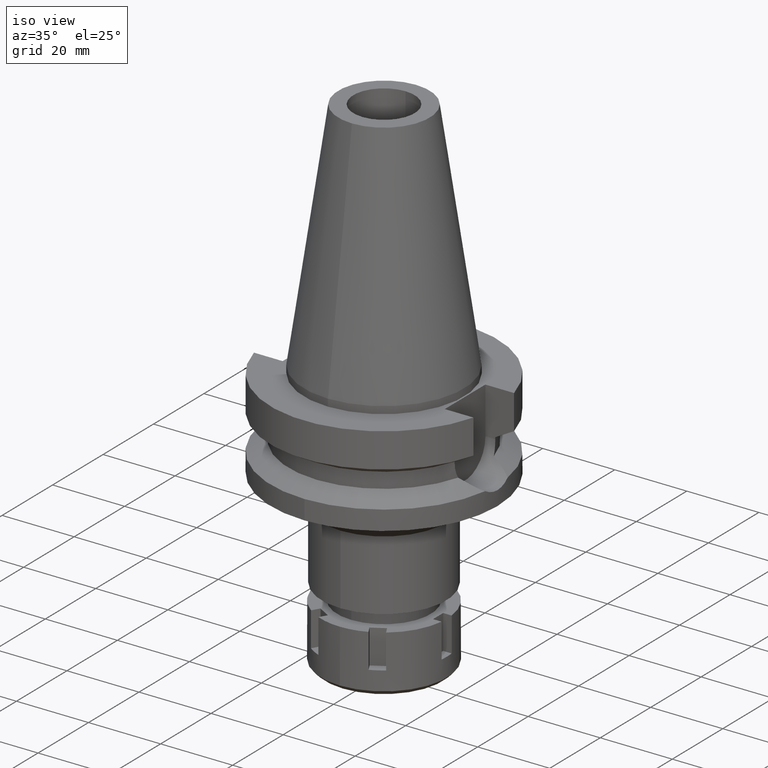
[diagram: clean part render]
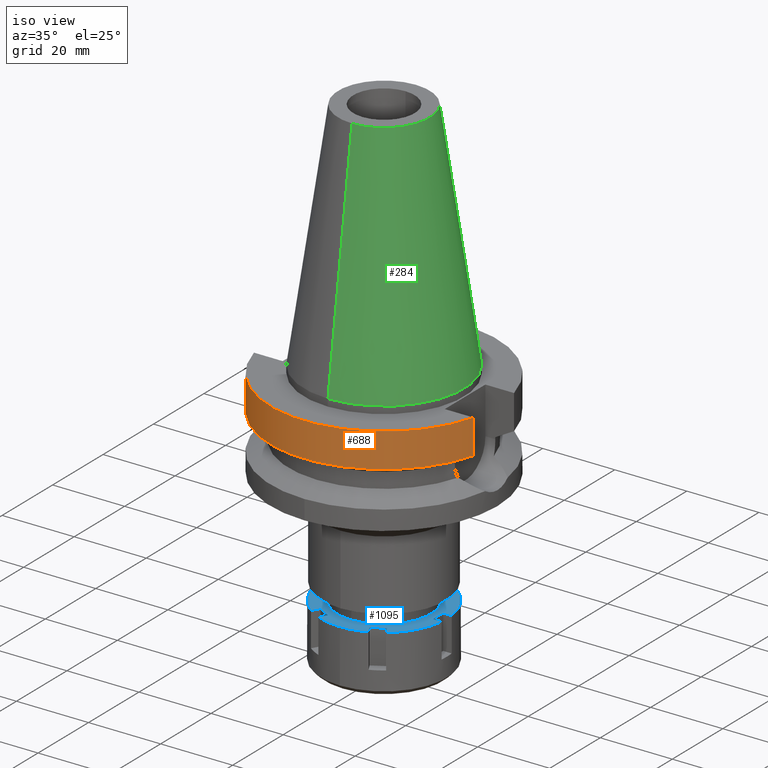
[diagram: same view with three faces highlighted in distinct colors, each labeled with its STEP entity id]
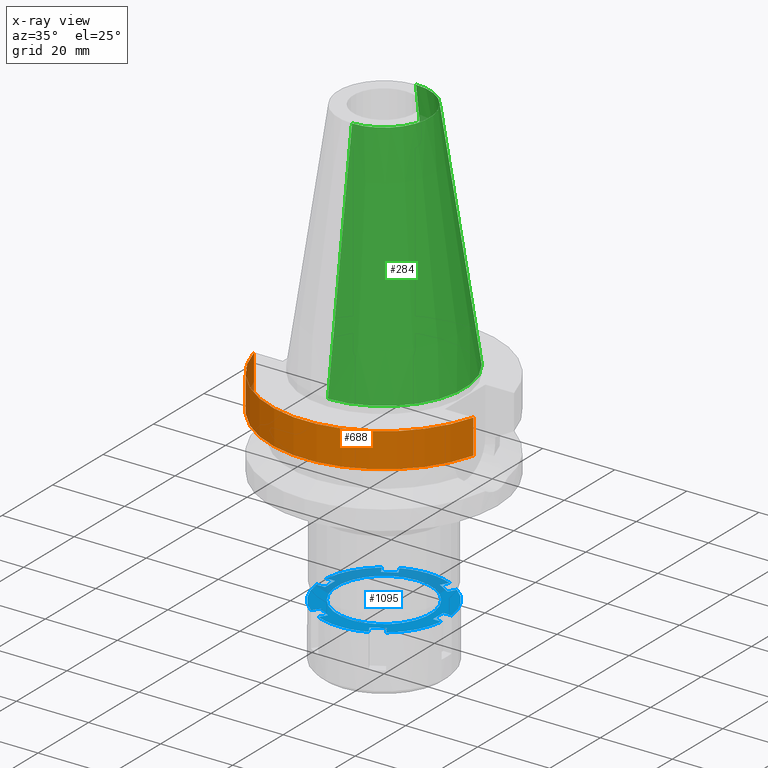
[diagram: x-ray of the same camera — body ghosted, the three highlighted faces saturated]
A machine part, iso view with three faces highlighted in distinct colors.
The next image is the same camera in x-ray (body ghosted, the three faces saturated) — at least one of them is partly hidden behind the body in this view.
Their STEP definitions:

[orange] entity #688 — the highlighted cylindrical surface (partial cylindrical patch) has radius 31.5 mm, axis along (0, 0, -1).
#37 = EDGE_LOOP ( 'NONE', ( #996, #2773, #2974, #440 ) ) ;
#90 = CARTESIAN_POINT ( 'NONE',  ( 0.0000000000000000000, 2.106637423893000012E-14, -2.000000000000000000 ) ) ;
#102 = AXIS2_PLACEMENT_3D ( 'NONE', #2407, #2442, #199 ) ;
#199 = DIRECTION ( 'NONE',  ( 0.0000000000000000000, -1.000000000000000000, 0.0000000000000000000 ) ) ;
#272 = VERTEX_POINT ( 'NONE', #2700 ) ;
#440 = ORIENTED_EDGE ( 'NONE', *, *, #1231, .T. ) ;
#586 = DIRECTION ( 'NONE',  ( 0.0000000000000000000, 0.0000000000000000000, -1.000000000000000000 ) ) ;
#603 = VECTOR ( 'NONE', #850, 1000.000000000000000 ) ;
#688 = ADVANCED_FACE ( 'NONE', ( #2656 ), #1376, .T. ) ;
#696 = CARTESIAN_POINT ( 'NONE',  ( 30.45402272279000044, -8.049999999999000622, -11.56550565266999975 ) ) ;
#728 = LINE ( 'NONE', #2625, #2251 ) ;
#748 = VERTEX_POINT ( 'NONE', #2260 ) ;
#831 = LINE ( 'NONE', #3293, #603 ) ;
#850 = DIRECTION ( 'NONE',  ( 2.014680238284988723E-08, -7.621779753744955794E-08, 0.9999999999999968914 ) ) ;
#996 = ORIENTED_EDGE ( 'NONE', *, *, #2552, .F. ) ;
#1061 = CARTESIAN_POINT ( 'NONE',  ( -30.45402291549999774, -8.049999270937000517, -11.56551221918000039 ) ) ;
#1231 = EDGE_CURVE ( 'NONE', #748, #272, #3504, .T. ) ;
#1376 = CYLINDRICAL_SURFACE ( 'NONE', #102, 31.50000000000000000 ) ;
#1509 = DIRECTION ( 'NONE',  ( 0.0000000000000000000, 0.0000000000000000000, 1.000000000000000000 ) ) ;
#1541 = DIRECTION ( 'NONE',  ( 0.0000000000000000000, -1.000000000000000000, 0.0000000000000000000 ) ) ;
#1562 = CIRCLE ( 'NONE', #2027, 31.50000000000000000 ) ;
#1973 = AXIS2_PLACEMENT_3D ( 'NONE', #90, #586, #3320 ) ;
#2027 = AXIS2_PLACEMENT_3D ( 'NONE', #2855, #1509, #1541 ) ;
#2251 = VECTOR ( 'NONE', #2906, 999.9999999999998863 ) ;
#2260 = CARTESIAN_POINT ( 'NONE',  ( 30.45402272279000044, -8.050000000000000711, -2.000000000000000000 ) ) ;
#2266 = EDGE_CURVE ( 'NONE', #3525, #2663, #1562, .T. ) ;
#2407 = CARTESIAN_POINT ( 'NONE',  ( 0.0000000000000000000, 2.106637423893000012E-14, 72.01999999999999602 ) ) ;
#2442 = DIRECTION ( 'NONE',  ( 0.0000000000000000000, 0.0000000000000000000, -1.000000000000000000 ) ) ;
#2552 = EDGE_CURVE ( 'NONE', #3525, #272, #831, .T. ) ;
#2625 = CARTESIAN_POINT ( 'NONE',  ( 30.45402272279000044, -8.050000000000000711, -2.000000000000000000 ) ) ;
#2656 = FACE_OUTER_BOUND ( 'NONE', #37, .T. ) ;
#2663 = VERTEX_POINT ( 'NONE', #696 ) ;
#2700 = CARTESIAN_POINT ( 'NONE',  ( -30.45402272279000044, -8.050000000000000711, -2.000000000000000000 ) ) ;
#2773 = ORIENTED_EDGE ( 'NONE', *, *, #2266, .T. ) ;
#2855 = CARTESIAN_POINT ( 'NONE',  ( 0.0000000000000000000, 1.065333950388000029E-14, -11.56550565266999975 ) ) ;
#2906 = DIRECTION ( 'NONE',  ( -1.149239527275999800E-07, -4.347691789038994612E-07, -0.9999999999998989697 ) ) ;
#2974 = ORIENTED_EDGE ( 'NONE', *, *, #3192, .F. ) ;
#3192 = EDGE_CURVE ( 'NONE', #748, #2663, #728, .T. ) ;
#3293 = CARTESIAN_POINT ( 'NONE',  ( -30.45402291549999774, -8.049999270937000517, -11.56551221918000039 ) ) ;
#3320 = DIRECTION ( 'NONE',  ( 0.0000000000000000000, -1.000000000000000000, 0.0000000000000000000 ) ) ;
#3504 = CIRCLE ( 'NONE', #1973, 31.50000000000000000 ) ;
#3525 = VERTEX_POINT ( 'NONE', #1061 ) ;

[blue] entity #1095 — the highlighted planar face has unit normal (0, 0, -1).
#43 = VECTOR ( 'NONE', #938, 1000.000000000000114 ) ;
#45 = ORIENTED_EDGE ( 'NONE', *, *, #1312, .F. ) ;
#49 = LINE ( 'NONE', #2841, #408 ) ;
#81 = EDGE_CURVE ( 'NONE', #1567, #3474, #1259, .T. ) ;
#95 = AXIS2_PLACEMENT_3D ( 'NONE', #2610, #501, #805 ) ;
#109 = VERTEX_POINT ( 'NONE', #235 ) ;
#145 = AXIS2_PLACEMENT_3D ( 'NONE', #317, #2183, #2482 ) ;
#178 = CARTESIAN_POINT ( 'NONE',  ( 0.0000000000000000000, -13.00000000000000000, 0.0000000000000000000 ) ) ;
#190 = DIRECTION ( 'NONE',  ( 0.0000000000000000000, 1.000000000000000000, 0.0000000000000000000 ) ) ;
#197 = LINE ( 'NONE', #241, #1330 ) ;
#227 = VERTEX_POINT ( 'NONE', #528 ) ;
#233 = LINE ( 'NONE', #521, #2871 ) ;
#235 = CARTESIAN_POINT ( 'NONE',  ( -15.00000000000000000, 2.000000000000000000, 0.0000000000000000000 ) ) ;
#238 = EDGE_CURVE ( 'NONE', #2946, #1567, #197, .T. ) ;
#241 = CARTESIAN_POINT ( 'NONE',  ( 9.232050807572999673, -11.99038105676999955, 0.0000000000000000000 ) ) ;
#255 = VERTEX_POINT ( 'NONE', #2998 ) ;
#256 = CARTESIAN_POINT ( 'NONE',  ( -9.232050807568999318, -11.99038105676999955, 0.0000000000000000000 ) ) ;
#317 = CARTESIAN_POINT ( 'NONE',  ( 0.0000000000000000000, 0.0000000000000000000, 0.0000000000000000000 ) ) ;
#322 = DIRECTION ( 'NONE',  ( 0.3977496295877935850, -0.9174939957093850573, 0.0000000000000000000 ) ) ;
#346 = ORIENTED_EDGE ( 'NONE', *, *, #2481, .F. ) ;
#347 = VECTOR ( 'NONE', #190, 1000.000000000000000 ) ;
#363 = EDGE_CURVE ( 'NONE', #1493, #2946, #1094, .T. ) ;
#387 = EDGE_CURVE ( 'NONE', #1079, #227, #2491, .T. ) ;
#388 = DIRECTION ( 'NONE',  ( 0.5000000000009082735, -0.8660254037839142383, 0.0000000000000000000 ) ) ;
#405 = VECTOR ( 'NONE', #2687, 1000.000000000000114 ) ;
#408 = VECTOR ( 'NONE', #3395, 1000.000000000000000 ) ;
#415 = FACE_OUTER_BOUND ( 'NONE', #1000, .T. ) ;
#434 = DIRECTION ( 'NONE',  ( 0.0000000000000000000, 0.0000000000000000000, -1.000000000000000000 ) ) ;
#447 = CARTESIAN_POINT ( 'NONE',  ( -6.960618517790000404, -16.05614492491000078, 0.0000000000000000000 ) ) ;
#471 = EDGE_CURVE ( 'NONE', #635, #2006, #2854, .T. ) ;
#477 = ORIENTED_EDGE ( 'NONE', *, *, #2986, .F. ) ;
#490 = CARTESIAN_POINT ( 'NONE',  ( 0.0000000000000000000, 0.0000000000000000000, 0.0000000000000000000 ) ) ;
#501 = DIRECTION ( 'NONE',  ( 0.0000000000000000000, 0.0000000000000000000, 1.000000000000000000 ) ) ;
#518 = AXIS2_PLACEMENT_3D ( 'NONE', #2689, #1565, #1319 ) ;
#521 = CARTESIAN_POINT ( 'NONE',  ( 17.38533865071000051, -2.000000000000000000, 0.0000000000000000000 ) ) ;
#528 = CARTESIAN_POINT ( 'NONE',  ( -5.767949192432999972, -13.99038105676999955, 0.0000000000000000000 ) ) ;
#534 = ORIENTED_EDGE ( 'NONE', *, *, #2825, .T. ) ;
#544 = CIRCLE ( 'NONE', #2990, 17.50000000000000355 ) ;
#546 = EDGE_CURVE ( 'NONE', #2898, #1234, #49, .T. ) ;
#563 = EDGE_CURVE ( 'NONE', #3455, #1901, #2114, .T. ) ;
#588 = DIRECTION ( 'NONE',  ( 0.8660254037844288266, 0.5000000000000169864, 0.0000000000000000000 ) ) ;
#610 = CARTESIAN_POINT ( 'NONE',  ( -15.00000000000000000, -2.000000000000000000, 0.0000000000000000000 ) ) ;
#617 = DIRECTION ( 'NONE',  ( 0.0000000000000000000, 0.0000000000000000000, 1.000000000000000000 ) ) ;
#621 = LINE ( 'NONE', #1143, #762 ) ;
#635 = VERTEX_POINT ( 'NONE', #178 ) ;
#638 = LINE ( 'NONE', #3086, #2065 ) ;
#650 = CIRCLE ( 'NONE', #518, 17.50000000000000000 ) ;
#666 = VECTOR ( 'NONE', #2223, 1000.000000000000114 ) ;
#694 = ORIENTED_EDGE ( 'NONE', *, *, #1882, .T. ) ;
#741 = ORIENTED_EDGE ( 'NONE', *, *, #2195, .F. ) ;
#761 = AXIS2_PLACEMENT_3D ( 'NONE', #3289, #1962, #1427 ) ;
#762 = VECTOR ( 'NONE', #869, 1000.000000000000000 ) ;
#766 = ORIENTED_EDGE ( 'NONE', *, *, #1664, .F. ) ;
#767 = CARTESIAN_POINT ( 'NONE',  ( -17.38533865071000051, 2.000000000000000000, 0.0000000000000000000 ) ) ;
#779 = DIRECTION ( 'NONE',  ( -0.5000000000004030110, 0.8660254037842058938, 0.0000000000000000000 ) ) ;
#791 = ORIENTED_EDGE ( 'NONE', *, *, #2476, .F. ) ;
#803 = CARTESIAN_POINT ( 'NONE',  ( -5.767949192430999794, 13.99038105676999955, 0.0000000000000000000 ) ) ;
#805 = DIRECTION ( 'NONE',  ( 0.0000000000000000000, 1.000000000000000000, 0.0000000000000000000 ) ) ;
#809 = DIRECTION ( 'NONE',  ( -0.3977496295877935850, 0.9174939957093850573, 0.0000000000000000000 ) ) ;
#834 = DIRECTION ( 'NONE',  ( 0.5000000000004030110, 0.8660254037842058938, 0.0000000000000000000 ) ) ;
#865 = CARTESIAN_POINT ( 'NONE',  ( 6.960618517789000315, 16.05614492491000078, 0.0000000000000000000 ) ) ;
#867 = DIRECTION ( 'NONE',  ( -0.5000000000009082735, 0.8660254037839142383, 0.0000000000000000000 ) ) ;
#869 = DIRECTION ( 'NONE',  ( -1.000000000000000000, -5.901731373884000040E-14, 0.0000000000000000000 ) ) ;
#882 = ORIENTED_EDGE ( 'NONE', *, *, #471, .F. ) ;
#909 = EDGE_CURVE ( 'NONE', #1935, #109, #3067, .T. ) ;
#914 = DIRECTION ( 'NONE',  ( 0.0000000000000000000, 0.0000000000000000000, -1.000000000000000000 ) ) ;
#938 = DIRECTION ( 'NONE',  ( 0.5000000000009082735, 0.8660254037839142383, 0.0000000000000000000 ) ) ;
#946 = VECTOR ( 'NONE', #1371, 1000.000000000000114 ) ;
#951 = VERTEX_POINT ( 'NONE', #3449 ) ;
#983 = DIRECTION ( 'NONE',  ( 0.0000000000000000000, -1.000000000000000000, 0.0000000000000000000 ) ) ;
#984 = DIRECTION ( 'NONE',  ( -0.9934479228979277154, 0.1142857142857031660, 0.0000000000000000000 ) ) ;
#1000 = EDGE_LOOP ( 'NONE', ( #3271, #1126, #1160, #791, #741, #45, #2047, #2778, #3087, #2864, #477, #2684, #2341, #1116, #346, #1103, #1187, #1442, #1304, #534, #694, #1333, #766, #3240, #2739, #3225 ) ) ;
#1028 = VERTEX_POINT ( 'NONE', #2599 ) ;
#1031 = CARTESIAN_POINT ( 'NONE',  ( 10.42472013293000010, -14.05614492490999901, 0.0000000000000000000 ) ) ;
#1051 = DIRECTION ( 'NONE',  ( -0.8660254037844288266, -0.5000000000000169864, 0.0000000000000000000 ) ) ;
#1064 = VERTEX_POINT ( 'NONE', #3421 ) ;
#1079 = VERTEX_POINT ( 'NONE', #447 ) ;
#1095 = ADVANCED_FACE ( 'NONE', ( #415, #1829 ), #2291, .F. ) ;
#1094 = LINE ( 'NONE', #1140, #1840 ) ;
#1103 = ORIENTED_EDGE ( 'NONE', *, *, #81, .F. ) ;
#1116 = ORIENTED_EDGE ( 'NONE', *, *, #1648, .F. ) ;
#1117 = AXIS2_PLACEMENT_3D ( 'NONE', #3391, #2988, #3251 ) ;
#1121 = EDGE_CURVE ( 'NONE', #1901, #1064, #1340, .T. ) ;
#1126 = ORIENTED_EDGE ( 'NONE', *, *, #1121, .F. ) ;
#1140 = CARTESIAN_POINT ( 'NONE',  ( 10.42472013293000010, -14.05614492490999901, 0.0000000000000000000 ) ) ;
#1143 = CARTESIAN_POINT ( 'NONE',  ( -15.00000000000000000, -2.000000000000000000, 0.0000000000000000000 ) ) ;
#1151 = LINE ( 'NONE', #865, #666 ) ;
#1160 = ORIENTED_EDGE ( 'NONE', *, *, #563, .F. ) ;
#1165 = VERTEX_POINT ( 'NONE', #2370 ) ;
#1187 = ORIENTED_EDGE ( 'NONE', *, *, #238, .F. ) ;
#1210 = DIRECTION ( 'NONE',  ( 0.0000000000000000000, -1.000000000000000000, 0.0000000000000000000 ) ) ;
#1234 = VERTEX_POINT ( 'NONE', #1791 ) ;
#1259 = LINE ( 'NONE', #1620, #405 ) ;
#1261 = LINE ( 'NONE', #2324, #2125 ) ;
#1262 = DIRECTION ( 'NONE',  ( 0.0000000000000000000, 0.0000000000000000000, -1.000000000000000000 ) ) ;
#1292 = AXIS2_PLACEMENT_3D ( 'NONE', #1816, #434, #2273 ) ;
#1304 = ORIENTED_EDGE ( 'NONE', *, *, #2305, .F. ) ;
#1312 = EDGE_CURVE ( 'NONE', #1935, #951, #2668, .T. ) ;
#1319 = DIRECTION ( 'NONE',  ( 0.0000000000000000000, 1.000000000000000000, 0.0000000000000000000 ) ) ;
#1330 = VECTOR ( 'NONE', #1051, 1000.000000000000114 ) ;
#1333 = ORIENTED_EDGE ( 'NONE', *, *, #546, .T. ) ;
#1337 = CARTESIAN_POINT ( 'NONE',  ( 5.767949192430999794, -13.99038105676999955, 0.0000000000000000000 ) ) ;
#1340 = CIRCLE ( 'NONE', #2185, 17.49999999999999645 ) ;
#1367 = CARTESIAN_POINT ( 'NONE',  ( 6.960618517787000137, -16.05614492491000078, 0.0000000000000000000 ) ) ;
#1371 = DIRECTION ( 'NONE',  ( -0.5000000000009082735, -0.8660254037839142383, 0.0000000000000000000 ) ) ;
#1388 = CARTESIAN_POINT ( 'NONE',  ( 15.00000000000000000, -2.000000000000000000, 0.0000000000000000000 ) ) ;
#1427 = DIRECTION ( 'NONE',  ( 0.5956982933099820299, 0.8032082814236758406, 0.0000000000000000000 ) ) ;
#1442 = ORIENTED_EDGE ( 'NONE', *, *, #363, .F. ) ;
#1448 = VERTEX_POINT ( 'NONE', #3492 ) ;
#1477 = CARTESIAN_POINT ( 'NONE',  ( 0.0000000000000000000, 0.0000000000000000000, 0.0000000000000000000 ) ) ;
#1493 = VERTEX_POINT ( 'NONE', #1031 ) ;
#1510 = VERTEX_POINT ( 'NONE', #2348 ) ;
#1524 = EDGE_CURVE ( 'NONE', #1064, #2066, #650, .T. ) ;
#1565 = DIRECTION ( 'NONE',  ( 0.0000000000000000000, 0.0000000000000000000, -1.000000000000000000 ) ) ;
#1567 = VERTEX_POINT ( 'NONE', #1337 ) ;
#1599 = CARTESIAN_POINT ( 'NONE',  ( 0.0000000000000000000, 13.00000000000000000, 0.0000000000000000000 ) ) ;
#1620 = CARTESIAN_POINT ( 'NONE',  ( 5.767949192430999794, -13.99038105676999955, 0.0000000000000000000 ) ) ;
#1631 = CIRCLE ( 'NONE', #1292, 17.50000000000000711 ) ;
#1648 = EDGE_CURVE ( 'NONE', #1448, #1079, #3375, .T. ) ;
#1664 = EDGE_CURVE ( 'NONE', #2479, #1234, #2168, .T. ) ;
#1675 = AXIS2_PLACEMENT_3D ( 'NONE', #1477, #617, #1210 ) ;
#1677 = CARTESIAN_POINT ( 'NONE',  ( 10.42472013293000010, 14.05614492490999901, 0.0000000000000000000 ) ) ;
#1718 = DIRECTION ( 'NONE',  ( -0.5956982933099820299, -0.8032082814236758406, 0.0000000000000000000 ) ) ;
#1737 = CARTESIAN_POINT ( 'NONE',  ( 9.232050807568999318, 11.99038105676999955, 0.0000000000000000000 ) ) ;
#1769 = EDGE_CURVE ( 'NONE', #3435, #1510, #3434, .T. ) ;
#1791 = CARTESIAN_POINT ( 'NONE',  ( 17.38533865071000051, 2.000000000000000000, 0.0000000000000000000 ) ) ;
#1795 = CARTESIAN_POINT ( 'NONE',  ( 5.767949192432999972, 13.99038105676999955, 0.0000000000000000000 ) ) ;
#1799 = VECTOR ( 'NONE', #3315, 1000.000000000000114 ) ;
#1816 = CARTESIAN_POINT ( 'NONE',  ( 0.0000000000000000000, 0.0000000000000000000, 0.0000000000000000000 ) ) ;
#1829 = FACE_BOUND ( 'NONE', #2934, .T. ) ;
#1840 = VECTOR ( 'NONE', #867, 1000.000000000000114 ) ;
#1842 = CARTESIAN_POINT ( 'NONE',  ( 0.0000000000000000000, 0.0000000000000000000, 0.0000000000000000000 ) ) ;
#1869 = CARTESIAN_POINT ( 'NONE',  ( -6.960618517787000137, 16.05614492491000078, 0.0000000000000000000 ) ) ;
#1882 = EDGE_CURVE ( 'NONE', #2049, #2898, #3224, .T. ) ;
#1885 = CARTESIAN_POINT ( 'NONE',  ( 15.00000000000000000, -2.000000000000000000, 0.0000000000000000000 ) ) ;
#1901 = VERTEX_POINT ( 'NONE', #1869 ) ;
#1910 = VECTOR ( 'NONE', #2268, 1000.000000000000000 ) ;
#1935 = VERTEX_POINT ( 'NONE', #767 ) ;
#1962 = DIRECTION ( 'NONE',  ( 0.0000000000000000000, 0.0000000000000000000, -1.000000000000000000 ) ) ;
#1968 = CARTESIAN_POINT ( 'NONE',  ( 0.0000000000000000000, 0.0000000000000000000, 0.0000000000000000000 ) ) ;
#1983 = CARTESIAN_POINT ( 'NONE',  ( 0.0000000000000000000, 0.0000000000000000000, 0.0000000000000000000 ) ) ;
#1997 = EDGE_CURVE ( 'NONE', #2006, #635, #3326, .T. ) ;
#1998 = LINE ( 'NONE', #1737, #43 ) ;
#2000 = CARTESIAN_POINT ( 'NONE',  ( -5.767949192432999972, -13.99038105676999955, 0.0000000000000000000 ) ) ;
#2006 = VERTEX_POINT ( 'NONE', #1599 ) ;
#2047 = ORIENTED_EDGE ( 'NONE', *, *, #909, .T. ) ;
#2049 = VERTEX_POINT ( 'NONE', #1388 ) ;
#2065 = VECTOR ( 'NONE', #388, 1000.000000000000114 ) ;
#2066 = VERTEX_POINT ( 'NONE', #3300 ) ;
#2072 = EDGE_CURVE ( 'NONE', #2456, #2997, #621, .T. ) ;
#2114 = LINE ( 'NONE', #2862, #2337 ) ;
#2125 = VECTOR ( 'NONE', #983, 1000.000000000000000 ) ;
#2168 = CIRCLE ( 'NONE', #761, 17.50000000000000355 ) ;
#2178 = EDGE_CURVE ( 'NONE', #1510, #2479, #1998, .T. ) ;
#2183 = DIRECTION ( 'NONE',  ( 0.0000000000000000000, 0.0000000000000000000, -1.000000000000000000 ) ) ;
#2185 = AXIS2_PLACEMENT_3D ( 'NONE', #490, #2666, #809 ) ;
#2195 = EDGE_CURVE ( 'NONE', #951, #2800, #638, .T. ) ;
#2201 = DIRECTION ( 'NONE',  ( -1.000000000000000000, 5.827261577368000597E-14, 0.0000000000000000000 ) ) ;
#2223 = DIRECTION ( 'NONE',  ( -0.5000000000004030110, -0.8660254037842058938, 0.0000000000000000000 ) ) ;
#2229 = CARTESIAN_POINT ( 'NONE',  ( -17.38533865071000051, 2.000000000000000000, 0.0000000000000000000 ) ) ;
#2241 = EDGE_CURVE ( 'NONE', #109, #2456, #1261, .T. ) ;
#2268 = DIRECTION ( 'NONE',  ( 1.000000000000000000, -5.845879026496999827E-14, 0.0000000000000000000 ) ) ;
#2273 = DIRECTION ( 'NONE',  ( 0.9934479228979277154, -0.1142857142857031660, 0.0000000000000000000 ) ) ;
#2291 = PLANE ( 'NONE',  #1117 ) ;
#2298 = VECTOR ( 'NONE', #588, 1000.000000000000114 ) ;
#2305 = EDGE_CURVE ( 'NONE', #255, #1493, #1631, .T. ) ;
#2324 = CARTESIAN_POINT ( 'NONE',  ( -15.00000000000000000, 2.000000000000000000, 0.0000000000000000000 ) ) ;
#2337 = VECTOR ( 'NONE', #779, 1000.000000000000114 ) ;
#2341 = ORIENTED_EDGE ( 'NONE', *, *, #387, .F. ) ;
#2348 = CARTESIAN_POINT ( 'NONE',  ( 9.232050807568999318, 11.99038105676999955, 0.0000000000000000000 ) ) ;
#2370 = CARTESIAN_POINT ( 'NONE',  ( -10.42472013293000010, -14.05614492490999901, 0.0000000000000000000 ) ) ;
#2437 = CARTESIAN_POINT ( 'NONE',  ( -17.38533865071000051, -2.000000000000000000, 0.0000000000000000000 ) ) ;
#2452 = EDGE_CURVE ( 'NONE', #2066, #3435, #1151, .T. ) ;
#2454 = ORIENTED_EDGE ( 'NONE', *, *, #1997, .F. ) ;
#2456 = VERTEX_POINT ( 'NONE', #610 ) ;
#2465 = AXIS2_PLACEMENT_3D ( 'NONE', #1968, #2503, #322 ) ;
#2476 = EDGE_CURVE ( 'NONE', #2800, #3455, #2993, .T. ) ;
#2479 = VERTEX_POINT ( 'NONE', #1677 ) ;
#2481 = EDGE_CURVE ( 'NONE', #3474, #1448, #2811, .T. ) ;
#2482 = DIRECTION ( 'NONE',  ( 0.0000000000000000000, -1.000000000000000000, 0.0000000000000000000 ) ) ;
#2491 = LINE ( 'NONE', #3279, #3548 ) ;
#2503 = DIRECTION ( 'NONE',  ( 0.0000000000000000000, 0.0000000000000000000, -1.000000000000000000 ) ) ;
#2599 = CARTESIAN_POINT ( 'NONE',  ( -9.232050807568999318, -11.99038105676999955, 0.0000000000000000000 ) ) ;
#2610 = CARTESIAN_POINT ( 'NONE',  ( 0.0000000000000000000, 0.0000000000000000000, 0.0000000000000000000 ) ) ;
#2650 = CARTESIAN_POINT ( 'NONE',  ( 15.00000000000000000, 2.000000000000000000, 0.0000000000000000000 ) ) ;
#2666 = DIRECTION ( 'NONE',  ( 0.0000000000000000000, 0.0000000000000000000, -1.000000000000000000 ) ) ;
#2668 = CIRCLE ( 'NONE', #2846, 17.50000000000000711 ) ;
#2684 = ORIENTED_EDGE ( 'NONE', *, *, #3102, .F. ) ;
#2685 = CARTESIAN_POINT ( 'NONE',  ( 9.232050807572999673, -11.99038105676999955, 0.0000000000000000000 ) ) ;
#2687 = DIRECTION ( 'NONE',  ( 0.5000000000004030110, -0.8660254037842058938, 0.0000000000000000000 ) ) ;
#2689 = CARTESIAN_POINT ( 'NONE',  ( 0.0000000000000000000, 0.0000000000000000000, 0.0000000000000000000 ) ) ;
#2707 = LINE ( 'NONE', #256, #946 ) ;
#2731 = CARTESIAN_POINT ( 'NONE',  ( -9.232050807572999673, 11.99038105676999955, 0.0000000000000000000 ) ) ;
#2739 = ORIENTED_EDGE ( 'NONE', *, *, #1769, .F. ) ;
#2778 = ORIENTED_EDGE ( 'NONE', *, *, #2241, .T. ) ;
#2779 = LINE ( 'NONE', #2000, #1799 ) ;
#2800 = VERTEX_POINT ( 'NONE', #3177 ) ;
#2811 = CIRCLE ( 'NONE', #2465, 17.49999999999999645 ) ;
#2825 = EDGE_CURVE ( 'NONE', #255, #2049, #233, .T. ) ;
#2841 = CARTESIAN_POINT ( 'NONE',  ( 15.00000000000000000, 2.000000000000000000, 0.0000000000000000000 ) ) ;
#2846 = AXIS2_PLACEMENT_3D ( 'NONE', #1842, #1262, #984 ) ;
#2854 = CIRCLE ( 'NONE', #1675, 13.00000000000000000 ) ;
#2862 = CARTESIAN_POINT ( 'NONE',  ( -5.767949192430999794, 13.99038105676999955, 0.0000000000000000000 ) ) ;
#2864 = ORIENTED_EDGE ( 'NONE', *, *, #3145, .F. ) ;
#2871 = VECTOR ( 'NONE', #2201, 1000.000000000000000 ) ;
#2898 = VERTEX_POINT ( 'NONE', #2650 ) ;
#2934 = EDGE_LOOP ( 'NONE', ( #2454, #882 ) ) ;
#2946 = VERTEX_POINT ( 'NONE', #2685 ) ;
#2986 = EDGE_CURVE ( 'NONE', #1028, #1165, #2707, .T. ) ;
#2988 = DIRECTION ( 'NONE',  ( 0.0000000000000000000, 0.0000000000000000000, -1.000000000000000000 ) ) ;
#2990 = AXIS2_PLACEMENT_3D ( 'NONE', #1983, #914, #1718 ) ;
#2993 = LINE ( 'NONE', #2731, #2298 ) ;
#2997 = VERTEX_POINT ( 'NONE', #2437 ) ;
#2998 = CARTESIAN_POINT ( 'NONE',  ( 17.38533865071000051, -2.000000000000000000, 0.0000000000000000000 ) ) ;
#3067 = LINE ( 'NONE', #2229, #1910 ) ;
#3086 = CARTESIAN_POINT ( 'NONE',  ( -10.42472013293000010, 14.05614492490999901, 0.0000000000000000000 ) ) ;
#3087 = ORIENTED_EDGE ( 'NONE', *, *, #2072, .T. ) ;
#3099 = VECTOR ( 'NONE', #3404, 1000.000000000000114 ) ;
#3102 = EDGE_CURVE ( 'NONE', #227, #1028, #2779, .T. ) ;
#3145 = EDGE_CURVE ( 'NONE', #1165, #2997, #544, .T. ) ;
#3177 = CARTESIAN_POINT ( 'NONE',  ( -9.232050807572999673, 11.99038105676999955, 0.0000000000000000000 ) ) ;
#3220 = CARTESIAN_POINT ( 'NONE',  ( 5.767949192432999972, 13.99038105676999955, 0.0000000000000000000 ) ) ;
#3224 = LINE ( 'NONE', #1885, #347 ) ;
#3225 = ORIENTED_EDGE ( 'NONE', *, *, #2452, .F. ) ;
#3240 = ORIENTED_EDGE ( 'NONE', *, *, #2178, .F. ) ;
#3251 = DIRECTION ( 'NONE',  ( 0.0000000000000000000, -1.000000000000000000, 0.0000000000000000000 ) ) ;
#3271 = ORIENTED_EDGE ( 'NONE', *, *, #1524, .F. ) ;
#3279 = CARTESIAN_POINT ( 'NONE',  ( -6.960618517789000315, -16.05614492491000078, 0.0000000000000000000 ) ) ;
#3289 = CARTESIAN_POINT ( 'NONE',  ( 0.0000000000000000000, 0.0000000000000000000, 0.0000000000000000000 ) ) ;
#3300 = CARTESIAN_POINT ( 'NONE',  ( 6.960618517789000315, 16.05614492491000078, 0.0000000000000000000 ) ) ;
#3315 = DIRECTION ( 'NONE',  ( -0.8660254037844288266, 0.5000000000000169864, 0.0000000000000000000 ) ) ;
#3326 = CIRCLE ( 'NONE', #95, 13.00000000000000000 ) ;
#3375 = CIRCLE ( 'NONE', #145, 17.50000000000000000 ) ;
#3391 = CARTESIAN_POINT ( 'NONE',  ( 0.0000000000000000000, 0.0000000000000000000, 0.0000000000000000000 ) ) ;
#3395 = DIRECTION ( 'NONE',  ( 1.000000000000000000, 5.920348823013000531E-14, 0.0000000000000000000 ) ) ;
#3404 = DIRECTION ( 'NONE',  ( 0.8660254037844288266, -0.5000000000000169864, 0.0000000000000000000 ) ) ;
#3421 = CARTESIAN_POINT ( 'NONE',  ( 0.0000000000000000000, 17.50000000000000000, 0.0000000000000000000 ) ) ;
#3434 = LINE ( 'NONE', #1795, #3099 ) ;
#3435 = VERTEX_POINT ( 'NONE', #3220 ) ;
#3449 = CARTESIAN_POINT ( 'NONE',  ( -10.42472013293000010, 14.05614492490999901, 0.0000000000000000000 ) ) ;
#3455 = VERTEX_POINT ( 'NONE', #803 ) ;
#3474 = VERTEX_POINT ( 'NONE', #1367 ) ;
#3492 = CARTESIAN_POINT ( 'NONE',  ( 0.0000000000000000000, -17.50000000000000000, 0.0000000000000000000 ) ) ;
#3548 = VECTOR ( 'NONE', #834, 1000.000000000000114 ) ;

[green] entity #284 — the highlighted conical surface has half-angle 8.297 deg.
#74 = CARTESIAN_POINT ( 'NONE',  ( 0.0000000000000000000, 1.625106302469000024E-14, 65.40000000000000568 ) ) ;
#268 = DIRECTION ( 'NONE',  ( 0.0000000000000000000, 0.0000000000000000000, -1.000000000000000000 ) ) ;
#284 = ADVANCED_FACE ( 'NONE', ( #802 ), #1728, .T. ) ;
#344 = AXIS2_PLACEMENT_3D ( 'NONE', #74, #1107, #3288 ) ;
#425 = CARTESIAN_POINT ( 'NONE',  ( 0.0000000000000000000, 12.68766899429999917, 65.40000000000000568 ) ) ;
#778 = VECTOR ( 'NONE', #3219, 1000.000000000000114 ) ;
#802 = FACE_OUTER_BOUND ( 'NONE', #3158, .T. ) ;
#827 = AXIS2_PLACEMENT_3D ( 'NONE', #2719, #268, #2958 ) ;
#844 = CARTESIAN_POINT ( 'NONE',  ( 0.0000000000000000000, 12.68766899429999917, 65.40000000000000568 ) ) ;
#874 = AXIS2_PLACEMENT_3D ( 'NONE', #2648, #3526, #1332 ) ;
#1107 = DIRECTION ( 'NONE',  ( 0.0000000000000000000, 0.0000000000000000000, -1.000000000000000000 ) ) ;
#1162 = CIRCLE ( 'NONE', #344, 12.68766899429999917 ) ;
#1181 = ORIENTED_EDGE ( 'NONE', *, *, #2642, .T. ) ;
#1254 = EDGE_CURVE ( 'NONE', #1690, #2928, #3450, .T. ) ;
#1256 = ORIENTED_EDGE ( 'NONE', *, *, #1254, .F. ) ;
#1267 = LINE ( 'NONE', #1286, #2925 ) ;
#1286 = CARTESIAN_POINT ( 'NONE',  ( 0.0000000000000000000, -12.68766899429999917, 65.40000000000000568 ) ) ;
#1332 = DIRECTION ( 'NONE',  ( 0.0000000000000000000, 1.000000000000000000, 0.0000000000000000000 ) ) ;
#1380 = EDGE_CURVE ( 'NONE', #1690, #2148, #1162, .T. ) ;
#1486 = DIRECTION ( 'NONE',  ( 0.0000000000000000000, -0.1443043893539925626, -0.9895333461855498891 ) ) ;
#1690 = VERTEX_POINT ( 'NONE', #844 ) ;
#1728 = CONICAL_SURFACE ( 'NONE', #827, 17.45633449714999941, 0.1448099680379422438 ) ;
#1942 = CARTESIAN_POINT ( 'NONE',  ( 0.0000000000000000000, 22.22500000000000142, 7.105427357600999334E-14 ) ) ;
#1945 = EDGE_CURVE ( 'NONE', #2928, #2153, #2387, .T. ) ;
#2097 = ORIENTED_EDGE ( 'NONE', *, *, #1945, .F. ) ;
#2148 = VERTEX_POINT ( 'NONE', #2269 ) ;
#2153 = VERTEX_POINT ( 'NONE', #2814 ) ;
#2269 = CARTESIAN_POINT ( 'NONE',  ( 0.0000000000000000000, -12.68766899429999917, 65.40000000000000568 ) ) ;
#2387 = CIRCLE ( 'NONE', #874, 22.22500000000000142 ) ;
#2642 = EDGE_CURVE ( 'NONE', #2148, #2153, #1267, .T. ) ;
#2648 = CARTESIAN_POINT ( 'NONE',  ( 0.0000000000000000000, 1.625106302469000024E-14, 2.842170943039999687E-14 ) ) ;
#2706 = ORIENTED_EDGE ( 'NONE', *, *, #1380, .T. ) ;
#2719 = CARTESIAN_POINT ( 'NONE',  ( 0.0000000000000000000, 1.625106302469000024E-14, 32.70000000000000284 ) ) ;
#2814 = CARTESIAN_POINT ( 'NONE',  ( 0.0000000000000000000, -22.22500000000000142, 7.105427357600999334E-14 ) ) ;
#2925 = VECTOR ( 'NONE', #1486, 1000.000000000000114 ) ;
#2928 = VERTEX_POINT ( 'NONE', #1942 ) ;
#2958 = DIRECTION ( 'NONE',  ( 0.0000000000000000000, -1.000000000000000000, 0.0000000000000000000 ) ) ;
#3158 = EDGE_LOOP ( 'NONE', ( #2706, #1181, #2097, #1256 ) ) ;
#3219 = DIRECTION ( 'NONE',  ( 0.0000000000000000000, 0.1443043893539925626, -0.9895333461855498891 ) ) ;
#3288 = DIRECTION ( 'NONE',  ( 0.0000000000000000000, 1.000000000000000000, 0.0000000000000000000 ) ) ;
#3450 = LINE ( 'NONE', #425, #778 ) ;
#3526 = DIRECTION ( 'NONE',  ( 0.0000000000000000000, 0.0000000000000000000, -1.000000000000000000 ) ) ;